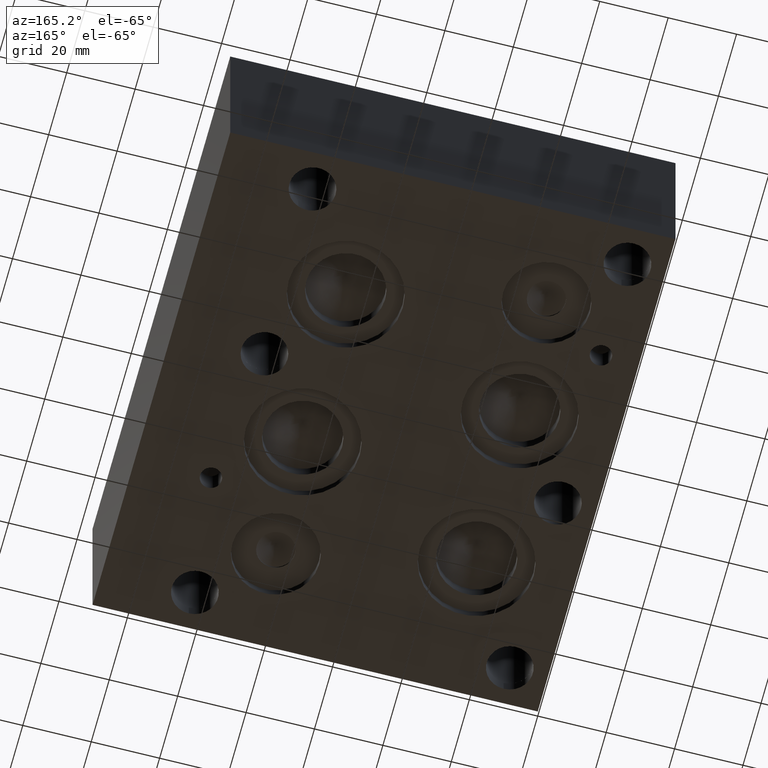
[diagram: clean part render]
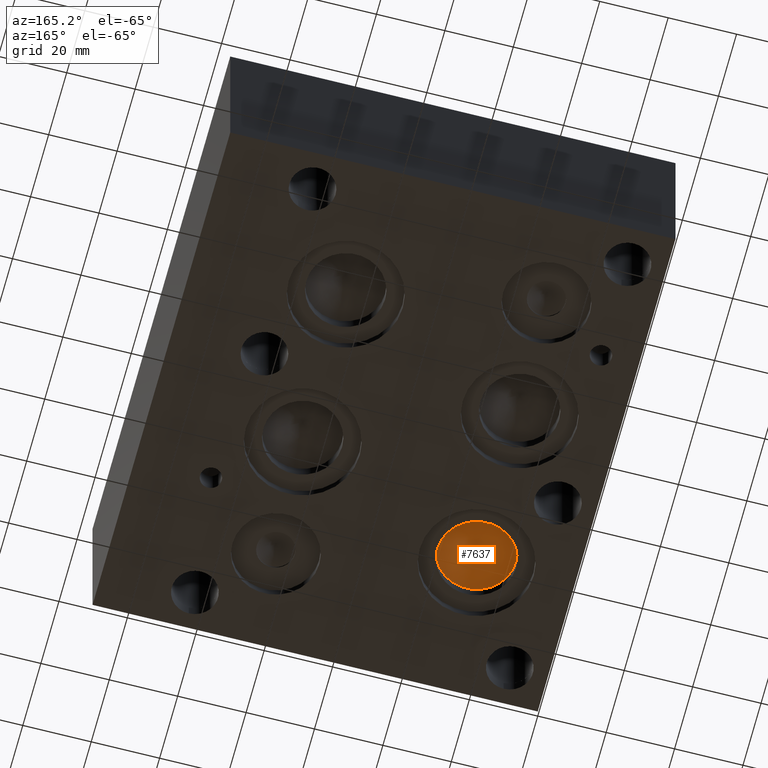
[diagram: same view with one face highlighted and labeled with its STEP entity id]
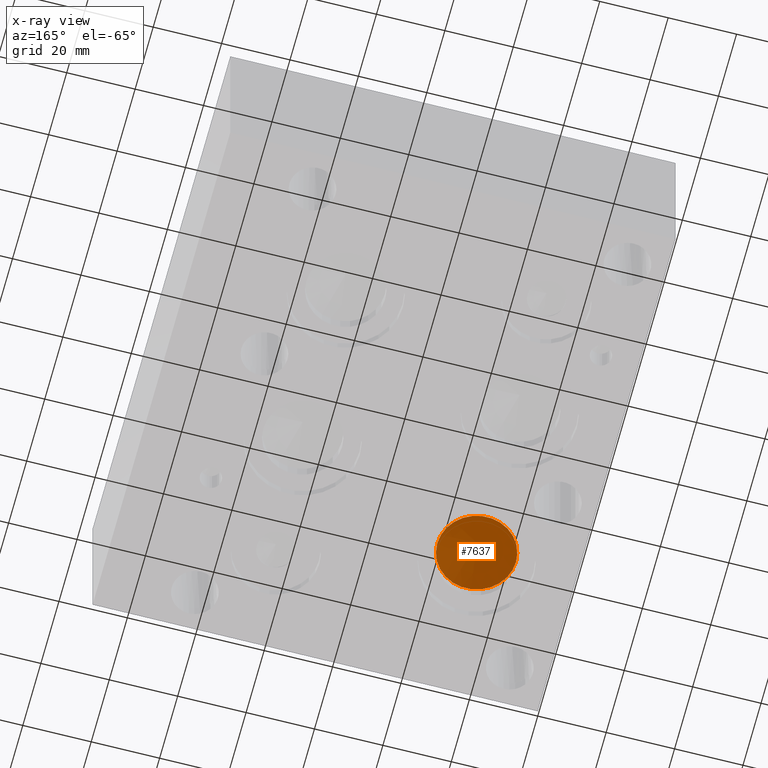
[diagram: x-ray of the same camera — body ghosted, the highlighted face saturated]
A machine part, auxiliary view. The second image highlights one B-rep face of the part: STEP entity #7637.
The next image is the same camera in x-ray: the body ghosted, the highlighted face saturated — about 0% of this face is hidden behind the body in this view.
In plain terms, the highlighted conical surface has half-angle 60 deg.
Its self-contained STEP definition (entity closure, byte-faithful):
#65=CONICAL_SURFACE('',#7992,5.7531,1.0471975511966);
#98=CIRCLE('',#7993,11.5062);
#850=FACE_OUTER_BOUND('',#1293,.T.);
#1293=EDGE_LOOP('',(#6427,#6428,#6429));
#2112=LINE('',#12663,#2875);
#2875=VECTOR('',#9373,5.7531);
#3532=VERTEX_POINT('',#12660);
#3533=VERTEX_POINT('',#12662);
#4520=EDGE_CURVE('',#3532,#3532,#98,.T.);
#4521=EDGE_CURVE('',#3532,#3533,#2112,.T.);
#6427=ORIENTED_EDGE('',*,*,#4520,.T.);
#6428=ORIENTED_EDGE('',*,*,#4521,.T.);
#6429=ORIENTED_EDGE('',*,*,#4521,.F.);
#7637=ADVANCED_FACE('',(#850),#65,.F.);
#7992=AXIS2_PLACEMENT_3D('',#12659,#9369,#9370);
#7993=AXIS2_PLACEMENT_3D('',#12661,#9371,#9372);
#9369=DIRECTION('center_axis',(0.,0.,-1.));
#9370=DIRECTION('ref_axis',(1.,0.,0.));
#9371=DIRECTION('center_axis',(0.,0.,-1.));
#9372=DIRECTION('ref_axis',(1.,0.,0.));
#9373=DIRECTION('',(0.866025403784439,-1.06057523872491E-16,0.5));
#12659=CARTESIAN_POINT('Origin',(28.575,40.4876,9.96466383367484));
#12660=CARTESIAN_POINT('',(17.0688,40.4876,6.64311));
#12661=CARTESIAN_POINT('Origin',(28.575,40.4876,6.64311));
#12662=CARTESIAN_POINT('',(28.575,40.4876,13.2862176673497));
#12663=CARTESIAN_POINT('',(22.8219,40.4876,9.96466383367484));